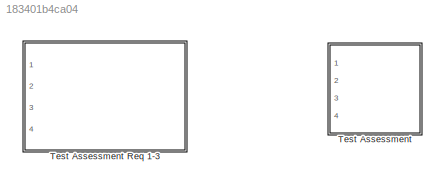
MODEL slx_183401b4ca04
KIND library
CONFIG AbsTol = auto
CONFIG EnableMultiTasking = on
CONFIG FixedStep = auto
CONFIG MaxStep = auto
CONFIG MinStep = auto
CONFIG RelTol = 1e-3
CONFIG SampleTimeConstraint = Unconstrained
CONFIG Solver = VariableStepAuto
CONFIG SolverName = VariableStepAuto
CONFIG StartTime = 0.0
CONFIG StopTime = 10.0
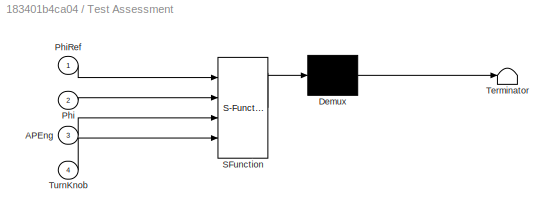
BLOCK [SubSystem] Test Assessment
  ErrorFcn = Stateflow.Translate.translate
  PermitHierarchicalResolution = ExplicitOnly
  Ports = [4]
  RequestExecContextInheritance = off
  SFBlockType = Test Sequence
  TreatAsAtomicUnit = on
  Variant = off
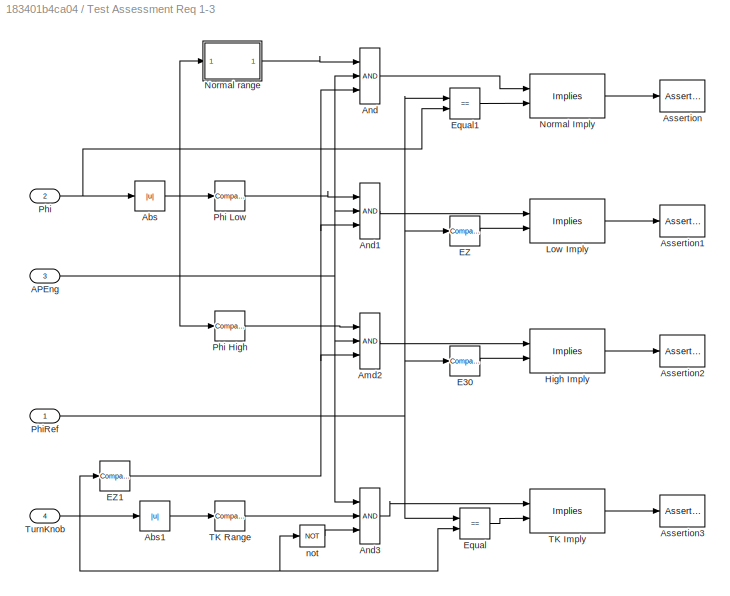
BLOCK [SubSystem] Test Assessment Req 1-3
  Ports = [4]
  RequestExecContextInheritance = off
  Variant = off
BLOCK [Inport] Test Assessment Req 1-3/APEng
  IconDisplay = Port number
  Port = 3
BLOCK [Abs] Test Assessment Req 1-3/Abs
  SaturateOnIntegerOverflow = off
BLOCK [Abs] Test Assessment Req 1-3/Abs1
  SaturateOnIntegerOverflow = off
BLOCK [Logic] Test Assessment Req 1-3/Amd2
  AllPortsSameDT = off
  Inputs = 3
  OutDataTypeStr = boolean
  Ports = [3, 1]
BLOCK [Logic] Test Assessment Req 1-3/And
  AllPortsSameDT = off
  Inputs = 3
  OutDataTypeStr = boolean
  Ports = [3, 1]
BLOCK [Logic] Test Assessment Req 1-3/And1
  AllPortsSameDT = off
  Inputs = 3
  OutDataTypeStr = boolean
  Ports = [3, 1]
BLOCK [Logic] Test Assessment Req 1-3/And3
  AllPortsSameDT = off
  Inputs = 3
  OutDataTypeStr = boolean
  Ports = [3, 1]
BLOCK [Assertion] Test Assessment Req 1-3/Assertion
  AssertionFailFcn = disp(sprintf('\nPhiRef must = Phi when Phi in normal range.'))
  StopWhenAssertionFail = off
BLOCK [Assertion] Test Assessment Req 1-3/Assertion1
  AssertionFailFcn = disp(sprintf('\nPhiRef must = 0 when Phi < 6 deg.'))
  StopWhenAssertionFail = off
BLOCK [Assertion] Test Assessment Req 1-3/Assertion2
  AssertionFailFcn = disp(sprintf('\nFailure of high limit test.\nPhiRef must = 0 when Phi > 30 deg.'))
  StopWhenAssertionFail = off
BLOCK [Assertion] Test Assessment Req 1-3/Assertion3
  AssertionFailFcn = disp(sprintf('\nPhiRef must = TK value when TK > 3 deg.'))
  StopWhenAssertionFail = off
BLOCK [Reference] Test Assessment Req 1-3/E30  REF=simulink/Logic and Bit
Operations/Compare
To Constant
  Ports = [1, 1]
  SourceBlock = simulink/Logic and Bit\nOperations/Compare\nTo Constant
  SourceProductBaseCode = SL
  SourceProductName = Simulink
  SourceType = Compare To Constant
BLOCK [Reference] Test Assessment Req 1-3/EZ  REF=simulink/Logic and Bit
Operations/Compare
To Zero
  Ports = [1, 1]
  SourceBlock = simulink/Logic and Bit\nOperations/Compare\nTo Zero
  SourceProductBaseCode = SL
  SourceProductName = Simulink
  SourceType = Compare To Zero
BLOCK [Reference] Test Assessment Req 1-3/EZ1  REF=simulink/Logic and Bit
Operations/Compare
To Zero
  Ports = [1, 1]
  SourceBlock = simulink/Logic and Bit\nOperations/Compare\nTo Zero
  SourceProductBaseCode = SL
  SourceProductName = Simulink
  SourceType = Compare To Zero
BLOCK [RelationalOperator] Test Assessment Req 1-3/Equal
  InputSameDT = off
  Operator = ==
  OutDataTypeStr = boolean
  Ports = [2, 1]
BLOCK [RelationalOperator] Test Assessment Req 1-3/Equal1
  InputSameDT = off
  Operator = ==
  OutDataTypeStr = boolean
  Ports = [2, 1]
BLOCK [Reference] Test Assessment Req 1-3/High Imply  REF=sldvlib/Verification Utilities/Implies
  Ports = [2, 1]
  SourceBlock = sldvlib/Verification Utilities/Implies
  SourceProductBaseCode = DV
  SourceProductName = Simulink Design Verifier
  SourceType = Design Verifier Implies
BLOCK [Reference] Test Assessment Req 1-3/Low Imply  REF=sldvlib/Verification Utilities/Implies
  Ports = [2, 1]
  SourceBlock = sldvlib/Verification Utilities/Implies
  SourceProductBaseCode = DV
  SourceProductName = Simulink Design Verifier
  SourceType = Design Verifier Implies
BLOCK [Reference] Test Assessment Req 1-3/Normal Imply  REF=sldvlib/Verification Utilities/Implies
  Ports = [2, 1]
  SourceBlock = sldvlib/Verification Utilities/Implies
  SourceProductBaseCode = DV
  SourceProductName = Simulink Design Verifier
  SourceType = Design Verifier Implies
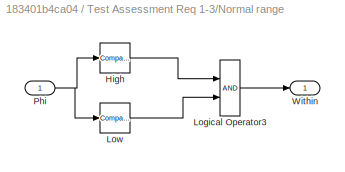
BLOCK [SubSystem] Test Assessment Req 1-3/Normal range
  Ports = [1, 1]
  RequestExecContextInheritance = off
  Variant = off
BLOCK [Reference] Test Assessment Req 1-3/Normal range/High  REF=simulink/Logic and Bit
Operations/Compare
To Constant
  Ports = [1, 1]
  SourceBlock = simulink/Logic and Bit\nOperations/Compare\nTo Constant
  SourceProductBaseCode = SL
  SourceProductName = Simulink
  SourceType = Compare To Constant
BLOCK [Logic] Test Assessment Req 1-3/Normal range/Logical Operator3
  AllPortsSameDT = off
  OutDataTypeStr = boolean
  Ports = [2, 1]
BLOCK [Reference] Test Assessment Req 1-3/Normal range/Low  REF=simulink/Logic and Bit
Operations/Compare
To Constant
  Ports = [1, 1]
  SourceBlock = simulink/Logic and Bit\nOperations/Compare\nTo Constant
  SourceProductBaseCode = SL
  SourceProductName = Simulink
  SourceType = Compare To Constant
BLOCK [Inport] Test Assessment Req 1-3/Normal range/Phi
  IconDisplay = Port number
BLOCK [Outport] Test Assessment Req 1-3/Normal range/Within
  IconDisplay = Port number
BLOCK [Inport] Test Assessment Req 1-3/Phi
  IconDisplay = Port number
  Port = 2
BLOCK [Reference] Test Assessment Req 1-3/Phi High  REF=simulink/Logic and Bit
Operations/Compare
To Constant
  Ports = [1, 1]
  SourceBlock = simulink/Logic and Bit\nOperations/Compare\nTo Constant
  SourceProductBaseCode = SL
  SourceProductName = Simulink
  SourceType = Compare To Constant
BLOCK [Reference] Test Assessment Req 1-3/Phi Low  REF=simulink/Logic and Bit
Operations/Compare
To Constant
  Ports = [1, 1]
  SourceBlock = simulink/Logic and Bit\nOperations/Compare\nTo Constant
  SourceProductBaseCode = SL
  SourceProductName = Simulink
  SourceType = Compare To Constant
BLOCK [Inport] Test Assessment Req 1-3/PhiRef
  IconDisplay = Port number
BLOCK [Reference] Test Assessment Req 1-3/TK Imply  REF=sldvlib/Verification Utilities/Implies
  Ports = [2, 1]
  SourceBlock = sldvlib/Verification Utilities/Implies
  SourceProductBaseCode = DV
  SourceProductName = Simulink Design Verifier
  SourceType = Design Verifier Implies
BLOCK [Reference] Test Assessment Req 1-3/TK Range  REF=simulink/Logic and Bit
Operations/Compare
To Constant
  Ports = [1, 1]
  SourceBlock = simulink/Logic and Bit\nOperations/Compare\nTo Constant
  SourceProductBaseCode = SL
  SourceProductName = Simulink
  SourceType = Compare To Constant
BLOCK [Inport] Test Assessment Req 1-3/TurnKnob
  IconDisplay = Port number
  Port = 4
BLOCK [Logic] Test Assessment Req 1-3/not
  AllPortsSameDT = off
  Inputs = 1
  Operator = NOT
  OutDataTypeStr = boolean
  Ports = [1, 1]
BLOCK [Demux] Test Assessment/ Demux 
  Outputs = 1
  Ports = [1, 1]
BLOCK [S-Function] Test Assessment/ SFunction 
  EnableBusSupport = off
  FunctionName = sf_sfun
  PortCounts = [4 1]
  Ports = [4, 1]
  SFcnIsStateOwnerBlock = off
  SFunctionDeploymentMode = off
  Tag = Stateflow S-Function RollRefAssessLib 1
BLOCK [Terminator] Test Assessment/ Terminator 
BLOCK [Inport] Test Assessment/APEng
  IconDisplay = Port number
  Port = 3
BLOCK [Inport] Test Assessment/Phi
  IconDisplay = Port number
  Port = 2
BLOCK [Inport] Test Assessment/PhiRef
  IconDisplay = Port number
BLOCK [Inport] Test Assessment/TurnKnob
  IconDisplay = Port number
  Port = 4
NET Test Assessment Req 1-3/APEng:1 -> Test Assessment Req 1-3/Amd2:2, Test Assessment Req 1-3/And1:2, Test Assessment Req 1-3/And3:1, Test Assessment Req 1-3/And:2
LINE Test Assessment Req 1-3/Abs1:1 -> Test Assessment Req 1-3/TK Range:1
NET Test Assessment Req 1-3/Abs:1 -> Test Assessment Req 1-3/Normal range:1, Test Assessment Req 1-3/Phi High:1, Test Assessment Req 1-3/Phi Low:1
LINE Test Assessment Req 1-3/Amd2:1 -> Test Assessment Req 1-3/High Imply:1
LINE Test Assessment Req 1-3/And1:1 -> Test Assessment Req 1-3/Low Imply:1
LINE Test Assessment Req 1-3/And3:1 -> Test Assessment Req 1-3/TK Imply:1
LINE Test Assessment Req 1-3/And:1 -> Test Assessment Req 1-3/Normal Imply:1
LINE Test Assessment Req 1-3/E30:1 -> Test Assessment Req 1-3/High Imply:2
NET Test Assessment Req 1-3/EZ1:1 -> Test Assessment Req 1-3/Amd2:3, Test Assessment Req 1-3/And1:3, Test Assessment Req 1-3/And:3
LINE Test Assessment Req 1-3/EZ:1 -> Test Assessment Req 1-3/Low Imply:2
LINE Test Assessment Req 1-3/Equal1:1 -> Test Assessment Req 1-3/Normal Imply:2
LINE Test Assessment Req 1-3/Equal:1 -> Test Assessment Req 1-3/TK Imply:2
LINE Test Assessment Req 1-3/High Imply:1 -> Test Assessment Req 1-3/Assertion2:1
LINE Test Assessment Req 1-3/Low Imply:1 -> Test Assessment Req 1-3/Assertion1:1
LINE Test Assessment Req 1-3/Normal Imply:1 -> Test Assessment Req 1-3/Assertion:1
LINE Test Assessment Req 1-3/Normal range/High:1 -> Test Assessment Req 1-3/Normal range/Logical Operator3:1
LINE Test Assessment Req 1-3/Normal range/Logical Operator3:1 -> Test Assessment Req 1-3/Normal range/Within:1
LINE Test Assessment Req 1-3/Normal range/Low:1 -> Test Assessment Req 1-3/Normal range/Logical Operator3:2
NET Test Assessment Req 1-3/Normal range/Phi:1 -> Test Assessment Req 1-3/Normal range/High:1, Test Assessment Req 1-3/Normal range/Low:1
LINE Test Assessment Req 1-3/Normal range:1 -> Test Assessment Req 1-3/And:1
LINE Test Assessment Req 1-3/Phi High:1 -> Test Assessment Req 1-3/Amd2:1
LINE Test Assessment Req 1-3/Phi Low:1 -> Test Assessment Req 1-3/And1:1
NET Test Assessment Req 1-3/Phi:1 -> Test Assessment Req 1-3/Abs:1, Test Assessment Req 1-3/Equal1:2
NET Test Assessment Req 1-3/PhiRef:1 -> Test Assessment Req 1-3/E30:1, Test Assessment Req 1-3/EZ:1, Test Assessment Req 1-3/Equal1:1, Test Assessment Req 1-3/Equal:1
LINE Test Assessment Req 1-3/TK Imply:1 -> Test Assessment Req 1-3/Assertion3:1
LINE Test Assessment Req 1-3/TK Range:1 -> Test Assessment Req 1-3/And3:2
NET Test Assessment Req 1-3/TurnKnob:1 -> Test Assessment Req 1-3/Abs1:1, Test Assessment Req 1-3/EZ1:1, Test Assessment Req 1-3/Equal:2, Test Assessment Req 1-3/not:1
LINE Test Assessment Req 1-3/not:1 -> Test Assessment Req 1-3/And3:3
note: NET lines group one-source signal fan-out (src -> all destinations, sorted); 1:1 wires keep LINE
CHART Test Assessment states=10 transitions=39
  STATE_LABEL 'GlobalAssessment'
  STATE_LABEL "NormalRange\nverify(PhiRef == Phi,'Simulink:verify_normal','PhiRef must equal Phi for normal operation')"
  STATE_LABEL "BelowLowLimit\nverify(PhiRef == 0,'Simulink:verify_low','PhiRef must equal 0 for low angle operation')"
  STATE_LABEL "ExceedPosLimit\nverify(PhiRef == 30,'Simulink:verify_high_pos','PhiRef must equal 30 for high pos angle operation')"
  STATE_LABEL "ExceedNegLimit\nverify(PhiRef == -30,'Simulink:verify_high_neg','PhiRef must equal -30 for high neg angle operation')"
  STATE_LABEL 'TurnKnobAssessments'
  STATE_LABEL "BelowLowTKLimit\nverify(PhiRef == 0,'Simulink:verifyTKLow','PhiRef must equal 0 for low TK operation')"
  STATE_LABEL "NormalTKLimit\nverify(PhiRef == TurnKnob,'Simulink:verifyTKNormal','PhiRef must equal TurnKnob for normal TK operation')"
  STATE_LABEL 'Else2'
  STATE_LABEL '[abs(Phi) < 3]'
  STATE_LABEL '[~in(BelowLowTKLimit)]'
  STATE_LABEL '[abs(Phi) >=3 && Phi <= 30]'
  STATE_LABEL '[~in(NormalTKLimit)]'
  STATE_LABEL '[~in(Else2)]'
  STATE_LABEL 'Else1'
  STATE_LABEL '[(abs(Phi) >= 6 && Phi <= 30) && APEng == true && TurnKnob == false]'
  STATE_LABEL '[~in(NormalRange)]'
  STATE_LABEL '[abs(Phi) < 6 && APEng == true && TurnKnob == false]'
  STATE_LABEL '[~in(BelowLowLimit)]'
  STATE_LABEL '[Phi > 30 && APEng == true && TurnKnob == false]'
  STATE_LABEL '[~in(ExceedPosLimit)]'
  STATE_LABEL '[Phi < -30 && APEng == true && TurnKnob == false]'
  STATE_LABEL '[~in(ExceedNegLimit)]'
  STATE_LABEL '[APEng == true && TurnKnob == true]'
  STATE_LABEL '[~in(TurnKnobAssessments)]'
  STATE_LABEL '[~in(Else1)]'
  STATE_LABEL "NormalRange\nverify(PhiRef == Phi,'Simulink:verify_normal','PhiRef must equal Phi for normal operation')"
  STATE_LABEL "BelowLowLimit\nverify(PhiRef == 0,'Simulink:verify_low','PhiRef must equal 0 for low angle operation')"
  STATE_LABEL "ExceedPosLimit\nverify(PhiRef == 30,'Simulink:verify_high_pos','PhiRef must equal 30 for high pos angle operation')"
  STATE_LABEL "ExceedNegLimit\nverify(PhiRef == -30,'Simulink:verify_high_neg','PhiRef must equal -30 for high neg angle operation')"
  STATE_LABEL 'TurnKnobAssessments'
  STATE_LABEL "BelowLowTKLimit\nverify(PhiRef == 0,'Simulink:verifyTKLow','PhiRef must equal 0 for low TK operation')"
  STATE_LABEL "NormalTKLimit\nverify(PhiRef == TurnKnob,'Simulink:verifyTKNormal','PhiRef must equal TurnKnob for normal TK operation')"
  STATE_LABEL 'Else2'
  STATE_LABEL '[abs(Phi) < 3]'
  STATE_LABEL '[~in(BelowLowTKLimit)]'
  STATE_LABEL '[abs(Phi) >=3 && Phi <= 30]'
  STATE_LABEL '[~in(NormalTKLimit)]'
  STATE_LABEL '[~in(Else2)]'
  STATE_LABEL "BelowLowTKLimit\nverify(PhiRef == 0,'Simulink:verifyTKLow','PhiRef must equal 0 for low TK operation')"
